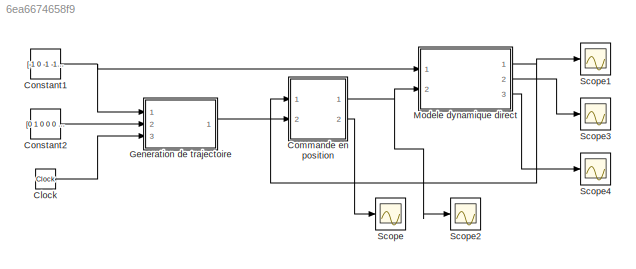
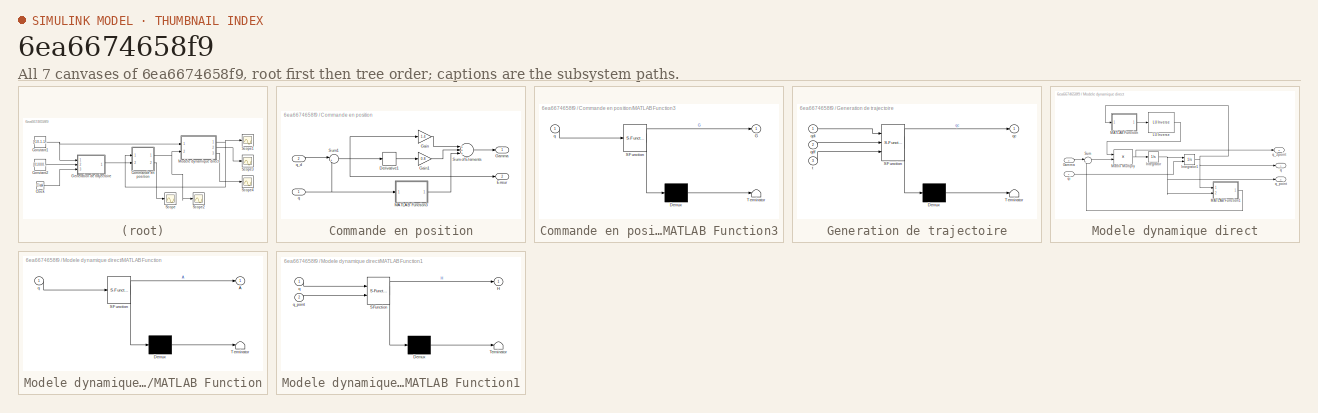
[diagram: thumbnail index - all 7 canvases of the model, root first then tree order]
MODEL slx_6ea6674658f9
KIND model
CONFIG AbsTol = auto
CONFIG EnableMultiTasking = off
CONFIG FixedStep = auto
CONFIG MaxStep = auto
CONFIG MinStep = auto
CONFIG RelTol = 1e-3
CONFIG SampleTimeConstraint = Unconstrained
CONFIG Solver = VariableStepAuto
CONFIG SolverName = VariableStepAuto
CONFIG StartTime = 0.0
CONFIG StopTime = 500
BLOCK [Clock] Clock
  Decimation = 1
  DisplayTime = on
BLOCK [SubSystem] Commande en position
  Ports = [2, 2]
  RequestExecContextInheritance = off
  Variant = off
BLOCK [Derivative] Commande en position/Derivative1
BLOCK [Outport] Commande en position/Erreur 
  IconDisplay = Port number
  Port = 2
BLOCK [Gain] Commande en position/Gain
  Gain = 1.4
  OutDataTypeStr = Inherit: Inherit via internal rule
  ParamDataTypeStr = Inherit: Inherit via internal rule
  SaturateOnIntegerOverflow = off
BLOCK [Gain] Commande en position/Gain1
  Gain = 0.8
  OutDataTypeStr = Inherit: Inherit via internal rule
  ParamDataTypeStr = Inherit: Inherit via internal rule
  SaturateOnIntegerOverflow = off
BLOCK [Outport] Commande en position/Gamma 
  IconDisplay = Port number
BLOCK [SubSystem] Commande en position/MATLAB Function3
  ErrorFcn = Stateflow.Translate.translate
  PermitHierarchicalResolution = ExplicitOnly
  Ports = [1, 1]
  RequestExecContextInheritance = off
  SFBlockType = MATLAB Function
  TreatAsAtomicUnit = on
  Variant = off
BLOCK [Demux] Commande en position/MATLAB Function3/ Demux 
  Outputs = 1
  Ports = [1, 1]
BLOCK [S-Function] Commande en position/MATLAB Function3/ SFunction 
  EnableBusSupport = on
  FunctionName = sf_sfun
  PortCounts = [1 2]
  Ports = [1, 2]
  SFcnIsStateOwnerBlock = off
  SFunctionDeploymentMode = off
  Tag = Stateflow S-Function TP2 4
BLOCK [Terminator] Commande en position/MATLAB Function3/ Terminator 
BLOCK [Outport] Commande en position/MATLAB Function3/G
  IconDisplay = Port number
BLOCK [Inport] Commande en position/MATLAB Function3/q
  IconDisplay = Port number
BLOCK [Sum] Commande en position/Sum of Elements
  InputSameDT = off
  Inputs = +++
  OutDataTypeStr = Inherit: Inherit via internal rule
  Ports = [3, 1]
  SaturateOnIntegerOverflow = off
BLOCK [Sum] Commande en position/Sum1
  IconShape = round
  InputSameDT = off
  Inputs = |+-
  OutDataTypeStr = Inherit: Inherit via internal rule
  Ports = [2, 1]
  SaturateOnIntegerOverflow = off
BLOCK [Inport] Commande en position/q
  IconDisplay = Port number
BLOCK [Inport] Commande en position/q_d 
  IconDisplay = Port number
  Port = 2
BLOCK [Constant] Constant1
  Value = [-1 0 -1 -1 -1 -1]'
  VectorParams1D = off
BLOCK [Constant] Constant2
  Value = [0 1 0 0 0 0]'
  VectorParams1D = off
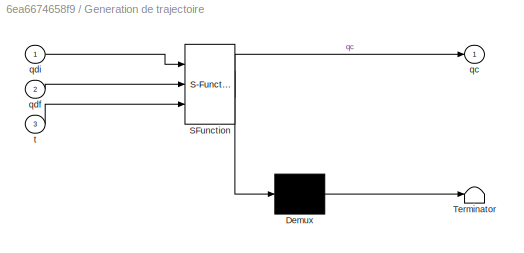
BLOCK [SubSystem] Generation de trajectoire
  ErrorFcn = Stateflow.Translate.translate
  PermitHierarchicalResolution = ExplicitOnly
  Ports = [3, 1]
  RequestExecContextInheritance = off
  SFBlockType = MATLAB Function
  TreatAsAtomicUnit = on
  Variant = off
BLOCK [Demux] Generation de trajectoire/ Demux 
  Outputs = 1
  Ports = [1, 1]
BLOCK [S-Function] Generation de trajectoire/ SFunction 
  EnableBusSupport = on
  FunctionName = sf_sfun
  PortCounts = [3 2]
  Ports = [3, 2]
  SFcnIsStateOwnerBlock = off
  SFunctionDeploymentMode = off
  Tag = Stateflow S-Function TP2 3
BLOCK [Terminator] Generation de trajectoire/ Terminator 
BLOCK [Outport] Generation de trajectoire/qc
  IconDisplay = Port number
BLOCK [Inport] Generation de trajectoire/qdf
  IconDisplay = Port number
  Port = 2
BLOCK [Inport] Generation de trajectoire/qdi
  IconDisplay = Port number
BLOCK [Inport] Generation de trajectoire/t
  IconDisplay = Port number
  Port = 3
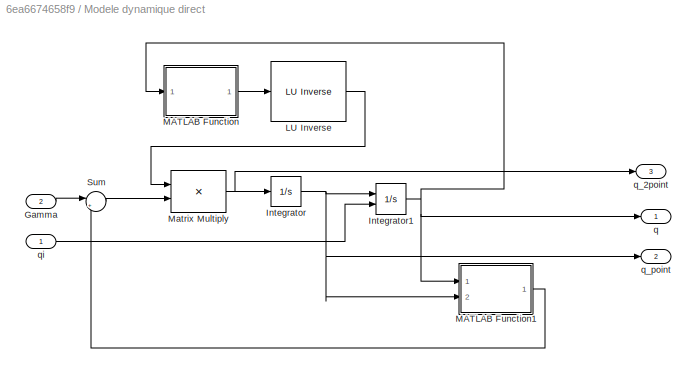
BLOCK [SubSystem] Modele dynamique direct
  Ports = [2, 3]
  RequestExecContextInheritance = off
  Variant = off
BLOCK [Reference] Modele dynamique direct/ LU Inverse  REF=dspinverses/ LU Inverse
  Ports = [1, 1]
  SourceBlock = dspinverses/ LU Inverse
  SourceType = LU Inverse
BLOCK [Inport] Modele dynamique direct/Gamma
  IconDisplay = Port number
  Port = 2
BLOCK [Integrator] Modele dynamique direct/Integrator
  InitialCondition = [0 0 0 0 0 0]'
  Ports = [1, 1]
BLOCK [Integrator] Modele dynamique direct/Integrator1
  InitialCondition = Constant1
  InitialConditionSource = external
  Ports = [2, 1]
BLOCK [SubSystem] Modele dynamique direct/MATLAB Function
  ErrorFcn = Stateflow.Translate.translate
  PermitHierarchicalResolution = ExplicitOnly
  Ports = [1, 1]
  RequestExecContextInheritance = off
  SFBlockType = MATLAB Function
  TreatAsAtomicUnit = on
  Variant = off
BLOCK [Demux] Modele dynamique direct/MATLAB Function/ Demux 
  Outputs = 1
  Ports = [1, 1]
BLOCK [S-Function] Modele dynamique direct/MATLAB Function/ SFunction 
  EnableBusSupport = on
  FunctionName = sf_sfun
  PortCounts = [1 2]
  Ports = [1, 2]
  SFcnIsStateOwnerBlock = off
  SFunctionDeploymentMode = off
  Tag = Stateflow S-Function TP2 2
BLOCK [Terminator] Modele dynamique direct/MATLAB Function/ Terminator 
BLOCK [Outport] Modele dynamique direct/MATLAB Function/A
  IconDisplay = Port number
BLOCK [Inport] Modele dynamique direct/MATLAB Function/q
  IconDisplay = Port number
BLOCK [SubSystem] Modele dynamique direct/MATLAB Function1
  ErrorFcn = Stateflow.Translate.translate
  PermitHierarchicalResolution = ExplicitOnly
  Ports = [2, 1]
  RequestExecContextInheritance = off
  SFBlockType = MATLAB Function
  TreatAsAtomicUnit = on
  Variant = off
BLOCK [Demux] Modele dynamique direct/MATLAB Function1/ Demux 
  Outputs = 1
  Ports = [1, 1]
BLOCK [S-Function] Modele dynamique direct/MATLAB Function1/ SFunction 
  EnableBusSupport = on
  FunctionName = sf_sfun
  PortCounts = [2 2]
  Ports = [2, 2]
  SFcnIsStateOwnerBlock = off
  SFunctionDeploymentMode = off
  Tag = Stateflow S-Function TP2 1
BLOCK [Terminator] Modele dynamique direct/MATLAB Function1/ Terminator 
BLOCK [Outport] Modele dynamique direct/MATLAB Function1/H
  IconDisplay = Port number
BLOCK [Inport] Modele dynamique direct/MATLAB Function1/q
  IconDisplay = Port number
BLOCK [Inport] Modele dynamique direct/MATLAB Function1/q_point
  IconDisplay = Port number
  Port = 2
BLOCK [Product] Modele dynamique direct/Matrix Multiply
  InputSameDT = off
  Multiplication = Matrix(*)
  OutDataTypeStr = Inherit: Inherit via internal rule
  Ports = [2, 1]
  RndMeth = Floor
  SaturateOnIntegerOverflow = off
BLOCK [Sum] Modele dynamique direct/Sum
  IconShape = round
  InputSameDT = off
  Inputs = |+-
  OutDataTypeStr = Inherit: Inherit via internal rule
  Ports = [2, 1]
  SaturateOnIntegerOverflow = off
BLOCK [Outport] Modele dynamique direct/q 
  IconDisplay = Port number
BLOCK [Outport] Modele dynamique direct/q_2point
  IconDisplay = Port number
  Port = 3
BLOCK [Outport] Modele dynamique direct/q_point 
  IconDisplay = Port number
  Port = 2
BLOCK [Inport] Modele dynamique direct/qi
  IconDisplay = Port number
BLOCK [Scope] Scope
  NumInputPorts = 1
  Ports = [1]
  ScopeSpecificationString = Simulink.scopes.TimeScopeBlockCfg('CurrentConfiguration', extmgr.ConfigurationSet(extmgr.Configuration('Core','General UI',true),extmgr.Configuration('Core','Source UI',true),extmgr.Configuration('Sources','WiredSimulink',true),extmgr.Configuration('Visuals','Time Domain',true,'SerializedDisplays',{struct('MinYLimReal','-0.00335','MaxYLimReal','0.03012','YLabelReal','','MinYLimMag','0.00000','MaxY...<+1534ch>
BLOCK [Scope] Scope1
  NumInputPorts = 1
  Ports = [1]
  ScopeSpecificationString = Simulink.scopes.TimeScopeBlockCfg('CurrentConfiguration', extmgr.ConfigurationSet(extmgr.Configuration('Core','General UI',true),extmgr.Configuration('Core','Source UI',true),extmgr.Configuration('Sources','WiredSimulink',true,'DataLoggingVariableName','ScopeData1'),extmgr.Configuration('Visuals','Time Domain',true,'SerializedDisplays',{struct('MinYLimReal','-1.24998','MaxYLimReal','1.24985','YLab...<+1507ch>
BLOCK [Scope] Scope2
  NumInputPorts = 1
  Ports = [1]
  ScopeSpecificationString = Simulink.scopes.TimeScopeBlockCfg('CurrentConfiguration', extmgr.ConfigurationSet(extmgr.Configuration('Core','General UI',true),extmgr.Configuration('Core','Source UI',true),extmgr.Configuration('Sources','WiredSimulink',true,'DataLoggingVariableName','ScopeData2'),extmgr.Configuration('Visuals','Time Domain',true,'SerializedDisplays',{struct('MinYLimReal','-14.02389','MaxYLimReal','126.21503','Y...<+1583ch>
BLOCK [Scope] Scope3
  NumInputPorts = 1
  Ports = [1]
  ScopeSpecificationString = Simulink.scopes.TimeScopeBlockCfg('CurrentConfiguration', extmgr.ConfigurationSet(extmgr.Configuration('Core','General UI',true),extmgr.Configuration('Core','Source UI',true),extmgr.Configuration('Sources','WiredSimulink',true,'DataLoggingVariableName','ScopeData3'),extmgr.Configuration('Visuals','Time Domain',true,'SerializedDisplays',{struct('MinYLimReal','-0.00047','MaxYLimReal','0.00421','YLab...<+1507ch>
BLOCK [Scope] Scope4
  NumInputPorts = 1
  Ports = [1]
  ScopeSpecificationString = Simulink.scopes.TimeScopeBlockCfg('CurrentConfiguration', extmgr.ConfigurationSet(extmgr.Configuration('Core','General UI',true),extmgr.Configuration('Core','Source UI',true),extmgr.Configuration('Sources','WiredSimulink',true,'DataLoggingVariableName','ScopeData4'),extmgr.Configuration('Visuals','Time Domain',true,'SerializedDisplays',{struct('MinYLimReal','-0.000029','MaxYLimReal','0.000029','YL...<+1515ch>
LINE Clock:1 -> Generation de trajectoire:3
LINE Commande en position/Derivative1:1 -> Commande en position/Gain1:1
LINE Commande en position/Gain1:1 -> Commande en position/Sum of Elements:2
LINE Commande en position/Gain:1 -> Commande en position/Sum of Elements:1
LINE Commande en position/MATLAB Function3:1 -> Commande en position/Sum of Elements:3
LINE Commande en position/Sum of Elements:1 -> Commande en position/Gamma :1
NET Commande en position/Sum1:1 -> Commande en position/Derivative1:1, Commande en position/Erreur :1, Commande en position/Gain:1
NET Commande en position/q:1 -> Commande en position/MATLAB Function3:1, Commande en position/Sum1:2
LINE Commande en position/q_d :1 -> Commande en position/Sum1:1
NET Commande en position:1 -> Modele dynamique direct:2, Scope2:1
LINE Commande en position:2 -> Scope:1
NET Constant1:1 -> Generation de trajectoire:1, Modele dynamique direct:1
LINE Constant2:1 -> Generation de trajectoire:2
LINE Generation de trajectoire:1 -> Commande en position:2
LINE Modele dynamique direct/ LU Inverse:1 -> Modele dynamique direct/Matrix Multiply:1
LINE Modele dynamique direct/Gamma:1 -> Modele dynamique direct/Sum:1
NET Modele dynamique direct/Integrator1:1 -> Modele dynamique direct/MATLAB Function1:1, Modele dynamique direct/MATLAB Function:1, Modele dynamique direct/q :1
NET Modele dynamique direct/Integrator:1 -> Modele dynamique direct/Integrator1:1, Modele dynamique direct/MATLAB Function1:2, Modele dynamique direct/q_point :1
LINE Modele dynamique direct/MATLAB Function1:1 -> Modele dynamique direct/Sum:2
LINE Modele dynamique direct/MATLAB Function:1 -> Modele dynamique direct/ LU Inverse:1
NET Modele dynamique direct/Matrix Multiply:1 -> Modele dynamique direct/Integrator:1, Modele dynamique direct/q_2point:1
LINE Modele dynamique direct/Sum:1 -> Modele dynamique direct/Matrix Multiply:2
LINE Modele dynamique direct/qi:1 -> Modele dynamique direct/Integrator1:2
NET Modele dynamique direct:1 -> Commande en position:1, Scope1:1
LINE Modele dynamique direct:2 -> Scope3:1
LINE Modele dynamique direct:3 -> Scope4:1
note: NET lines group one-source signal fan-out (src -> all destinations, sorted); 1:1 wires keep LINE
CHART Modele dynamique direct/MATLAB Function1 states=1 transitions=1
  STATE_LABEL 'eML_blk_kernel()'
  STATE_LABEL 'SCRIPT:\nfunction H  = CalculMatriceH(q,q_point)\n    H = CalculCoupleCoriolisCentrifuge(q,q_point) + CalculCoupleGravite(q) + CalculCoupleFrottement(q_point);\nend'
CHART Modele dynamique direct/MATLAB Function states=1 transitions=1
  STATE_LABEL 'eML_blk_kernel()'
  STATE_LABEL 'SCRIPT:\nfunction A = CalculMatriceInertie(q)\n\n    %Parametres geometriques du robot - Convention DHM\n    d3 = 0.7;\n    r1 = 0.5;\n    r4 = 0.2;\n\n    alpha = [0 pi/2 0 pi/2 -pi/2 pi/2];\n    d = [0 0 d3 0 0 0];\n    r = [r1 0 0 r4 0 0];\n\n    %Parametres inertiels du robot\n\n    m = [15 10 1 7 1 0.5];\n    OG = [0 0 -0.25;0.35 0 0;0 -0.1 0; 0 0 0;0 0 0;0 0 0];\n\n    I = [[0.8 0 0.05;0 0.8 0;0.05 0 0.1];\n ...<+1241ch>'
CHART Generation de trajectoire states=1 transitions=1
  STATE_LABEL 'eML_blk_kernel()'
  STATE_LABEL 'SCRIPT:\nfunction qc  = GeneTraj(qdi,qdf,t)\n    tf = 500;\n    D = qdf - qdi;\n    \n    r = 10*(t/tf)^3 - 15*(t/tf)^4 + 6*(t/tf)^5;\n    \n    qc = qdi + D*r;\nend'
CHART Commande en position/MATLAB Function3 states=1 transitions=1
  STATE_LABEL 'eML_blk_kernel()'
  STATE_LABEL "SCRIPT:\nfunction G  = CalculCoupleGravite(q)\n    g = [0 0 -9.81].';  \n    \n    %Global variables => Doesn't work well with simulink\n    %global alpha d r OG m;\n    \n    %Parametres geometriques du robot - Convention DHM\n    d3 = 0.7;\n    r1 = 0.5;\n    r4 = 0.2;\n\n    alpha = [0 pi/2 0 pi/2 -pi/2 pi/2];\n    d = [0 0 d3 0 0 0];\n    r = [r1 0 0 r4 0 0];\n\n    %Parametres inertiels du robot\n\n    m = [15...<+358ch>"
